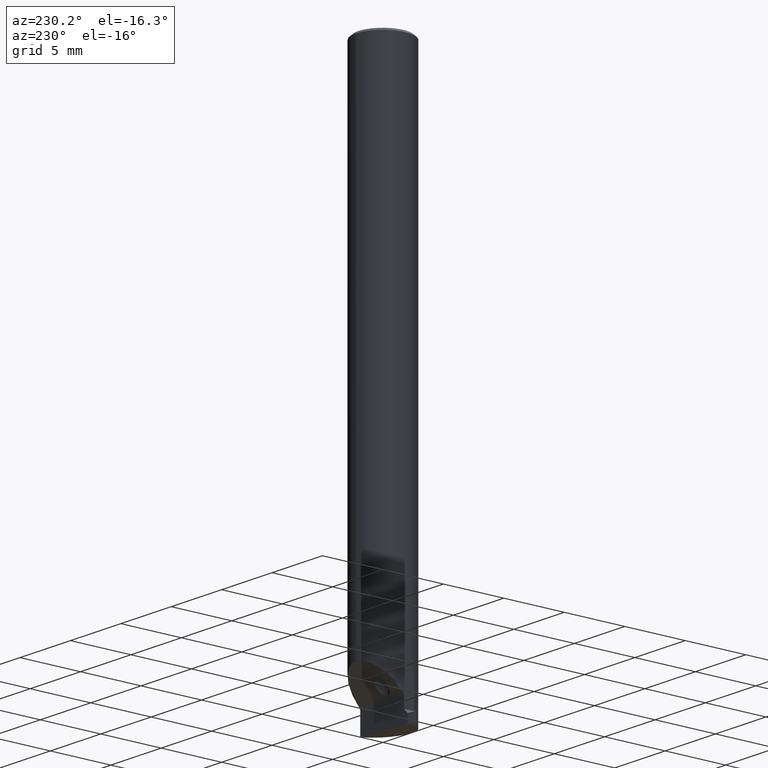
[diagram: clean part render]
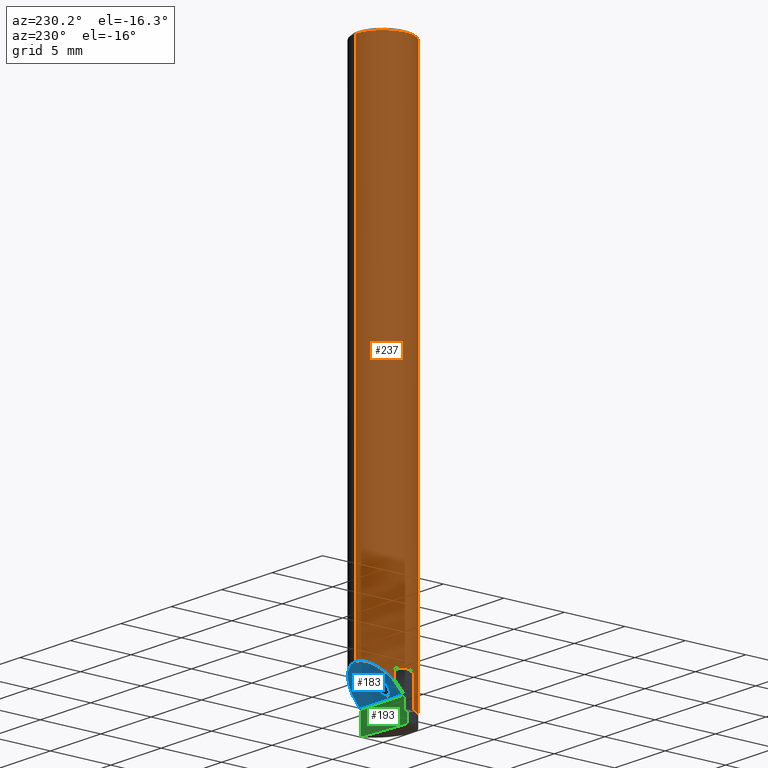
[diagram: same view with three faces highlighted in distinct colors, each labeled with its STEP entity id]
A machine part, auxiliary view with three faces highlighted in distinct colors.
Their STEP definitions:

[orange] entity #237 — the highlighted cylindrical surface (edge-blend (fillet) strip) has radius 2.25 mm, axis along (-0, -0, 1).
#145=EDGE_CURVE('NONE',#211,#241,#366,.T.);
#153=EDGE_CURVE('NONE',#241,#289,#374,.T.);
#155=VERTEX_POINT('NONE',#376);
#157=VERTEX_POINT('NONE',#378);
#161=EDGE_CURVE('NONE',#157,#279,#382,.T.);
#181=VERTEX_POINT('NONE',#404);
#205=VERTEX_POINT('NONE',#433);
#211=VERTEX_POINT('NONE',#439);
#213=EDGE_CURVE('NONE',#181,#205,#441,.T.);
#231=VERTEX_POINT('NONE',#463);
#235=EDGE_CURVE('NONE',#279,#211,#467,.T.);
#237=ADVANCED_FACE('NONE',(#469),#470,.T.);
#241=VERTEX_POINT('NONE',#474);
#245=EDGE_CURVE('NONE',#231,#205,#479,.T.);
#259=EDGE_CURVE('NONE',#289,#309,#493,.T.);
#271=EDGE_CURVE('NONE',#155,#157,#505,.T.);
#277=EDGE_CURVE('NONE',#181,#155,#512,.T.);
#279=VERTEX_POINT('NONE',#514);
#289=VERTEX_POINT('NONE',#525);
#297=EDGE_CURVE('NONE',#309,#231,#535,.T.);
#309=VERTEX_POINT('NONE',#547);
#366=CIRCLE('',#600,2.25);
#374=LINE('',#613,#614);
#376=CARTESIAN_POINT('',(-2.1,0.807774721070173,-43.1922252789298));
#378=CARTESIAN_POINT('',(-2.1,0.807774721070152,-42.45));
#382=(B_SPLINE_CURVE(3,(#625,#626,#627,#628),.UNSPECIFIED.,.F.,.F.)B_SPLINE_CURVE_WITH_KNOTS((4,4),(5.91597728662176,6.65039332773741),.UNSPECIFIED.)RATIONAL_B_SPLINE_CURVE((1.0,0.955555555555558,0.955555555555558,1.0))BOUNDED_CURVE()REPRESENTATION_ITEM('')GEOMETRIC_REPRESENTATION_ITEM()CURVE());
#404=CARTESIAN_POINT('',(2.75545529808154E-016,2.25,-41.75));
#433=CARTESIAN_POINT('',(2.75545529808154E-016,2.25,-0.200000000000001));
#439=CARTESIAN_POINT('',(-2.1,-0.807774721070175,-44.9));
#441=LINE('',#717,#718);
#463=CARTESIAN_POINT('',(0.0,-2.25,-0.200000000000001));
#467=LINE('',#756,#757);
#469=FACE_OUTER_BOUND('',#759,.T.);
#470=CYLINDRICAL_SURFACE('',#760,2.25);
#474=CARTESIAN_POINT('',(-1.7235999970177,-1.44627212179472,-44.9));
#479=CIRCLE('',#770,2.25);
#493=(B_SPLINE_CURVE(3,(#805,#806,#807,#808),.UNSPECIFIED.,.F.,.F.)B_SPLINE_CURVE_WITH_KNOTS((4,4),(5.08992869571552,5.96259332171268),.UNSPECIFIED.)RATIONAL_B_SPLINE_CURVE((1.0,0.9375385246911,0.9375385246911,1.0))BOUNDED_CURVE()REPRESENTATION_ITEM('')GEOMETRIC_REPRESENTATION_ITEM()CURVE());
#505=LINE('',#844,#845);
#512=(B_SPLINE_CURVE(3,(#854,#855,#856,#857),.UNSPECIFIED.,.F.,.F.)B_SPLINE_CURVE_WITH_KNOTS((4,4),(0.0,1.20358830623706),.UNSPECIFIED.)RATIONAL_B_SPLINE_CURVE((1.0,0.882880821351591,0.882880821351591,1.0))BOUNDED_CURVE()REPRESENTATION_ITEM('')GEOMETRIC_REPRESENTATION_ITEM()CURVE());
#514=CARTESIAN_POINT('',(-2.1,-0.807774721070152,-42.45));
#525=CARTESIAN_POINT('',(-1.7235999970177,-1.44627212179472,-45.8260846025512));
#535=LINE('',#891,#892);
#547=CARTESIAN_POINT('',(0.0,-2.25,-45.6813684689799));
#600=AXIS2_PLACEMENT_3D('',#988,#989,#990);
#613=CARTESIAN_POINT('',(-1.7235999970177,-1.44627212179472,-44.0));
#614=VECTOR('',#993,1000.0);
#625=CARTESIAN_POINT('',(-2.1,0.807774721070152,-42.45));
#626=CARTESIAN_POINT('',(-2.30232558139534,0.281781879443077,-42.2476744186047));
#627=CARTESIAN_POINT('',(-2.30232558139534,-0.281781879443076,-42.2476744186047));
#628=CARTESIAN_POINT('',(-2.1,-0.807774721070152,-42.45));
#717=CARTESIAN_POINT('',(2.75545529808154E-016,2.25,0.0));
#718=VECTOR('',#1060,1000.0);
#756=CARTESIAN_POINT('',(-2.10000000000001,-0.807774721070154,-3.64291929955131E-016));
#757=VECTOR('',#1104,1000.0);
#759=EDGE_LOOP('',(#1106,#1107,#1108,#1109,#1110,#1111,#1112,#1113,#1114,#1115));
#760=AXIS2_PLACEMENT_3D('',#1116,#1117,#1118);
#770=AXIS2_PLACEMENT_3D('',#1126,#1127,#1128);
#805=CARTESIAN_POINT('',(-1.7235999970177,-1.44627212179472,-45.8260846025512));
#806=CARTESIAN_POINT('',(-1.28897180555694,-1.96424183041079,-45.7564330574622));
#807=CARTESIAN_POINT('',(-0.676161433280744,-2.25,-45.7049805465307));
#808=CARTESIAN_POINT('',(0.0,-2.25,-45.6813684689799));
#844=CARTESIAN_POINT('',(-2.10000000000001,0.807774721070154,-3.64291929955131E-016));
#845=VECTOR('',#1132,1000.0);
#854=CARTESIAN_POINT('',(2.75545529808154E-016,2.25,-41.75));
#855=CARTESIAN_POINT('',(-0.961832551895664,2.25,-41.75));
#856=CARTESIAN_POINT('',(-1.75469154607834,1.70548510283946,-42.2945148971606));
#857=CARTESIAN_POINT('',(-2.1,0.807774721070173,-43.1922252789298));
#891=CARTESIAN_POINT('',(0.0,-2.25,0.0));
#892=VECTOR('',#1169,1000.0);
#988=CARTESIAN_POINT('',(0.0,0.0,-44.9));
#989=DIRECTION('',(0.0,0.0,1.0));
#990=DIRECTION('',(0.0,-1.0,0.0));
#993=DIRECTION('',(0.0,0.0,-1.0));
#1060=DIRECTION('',(-0.0,0.0,1.0));
#1104=DIRECTION('',(0.0,0.0,-1.0));
#1106=ORIENTED_EDGE('',*,*,#213,.F.);
#1107=ORIENTED_EDGE('',*,*,#277,.T.);
#1108=ORIENTED_EDGE('',*,*,#271,.T.);
#1109=ORIENTED_EDGE('',*,*,#161,.T.);
#1110=ORIENTED_EDGE('',*,*,#235,.T.);
#1111=ORIENTED_EDGE('',*,*,#145,.T.);
#1112=ORIENTED_EDGE('',*,*,#153,.T.);
#1113=ORIENTED_EDGE('',*,*,#259,.T.);
#1114=ORIENTED_EDGE('',*,*,#297,.T.);
#1115=ORIENTED_EDGE('',*,*,#245,.T.);
#1116=CARTESIAN_POINT('',(0.0,0.0,0.0));
#1117=DIRECTION('',(-0.0,-0.0,1.0));
#1118=DIRECTION('',(0.0,-1.0,0.0));
#1126=CARTESIAN_POINT('',(0.0,0.0,-0.200000000000001));
#1127=DIRECTION('',(0.0,0.0,-1.0));
#1128=DIRECTION('',(0.0,1.0,0.0));
#1132=DIRECTION('',(-0.0,0.0,1.0));
#1169=DIRECTION('',(-0.0,0.0,1.0));

[blue] entity #183 — the highlighted planar face has unit normal (0, -0.7071, 0.7071).
#127=VERTEX_POINT('NONE',#345);
#149=VERTEX_POINT('NONE',#370);
#155=VERTEX_POINT('NONE',#376);
#181=VERTEX_POINT('NONE',#404);
#183=ADVANCED_FACE('NONE',(#406,#407),#408,.F.);
#185=EDGE_CURVE('NONE',#253,#155,#410,.T.);
#201=EDGE_CURVE('NONE',#149,#253,#428,.T.);
#239=VERTEX_POINT('NONE',#472);
#253=VERTEX_POINT('NONE',#487);
#265=EDGE_CURVE('NONE',#149,#181,#499,.T.);
#277=EDGE_CURVE('NONE',#181,#155,#512,.T.);
#301=EDGE_CURVE('NONE',#239,#127,#539,.T.);
#303=EDGE_CURVE('NONE',#127,#239,#541,.T.);
#345=CARTESIAN_POINT('',(-0.7,0.2,-43.8));
#370=CARTESIAN_POINT('',(2.24880820606123,0.0732233047033652,-43.9267766952966));
#376=CARTESIAN_POINT('',(-2.1,0.807774721070173,-43.1922252789298));
#404=CARTESIAN_POINT('',(2.75545529808154E-016,2.25,-41.75));
#406=FACE_OUTER_BOUND('',#665,.T.);
#407=FACE_BOUND('',#666,.T.);
#408=PLANE('',#667);
#410=LINE('',#670,#671);
#428=LINE('',#699,#700);
#472=CARTESIAN_POINT('',(-0.7,1.2,-42.8));
#487=CARTESIAN_POINT('',(-2.1,0.0732233047033637,-43.9267766952966));
#499=(B_SPLINE_CURVE(3,(#824,#825,#826,#827),.UNSPECIFIED.,.F.,.F.)B_SPLINE_CURVE_WITH_KNOTS((4,4),(4.74493841856295,6.28318530717959),.UNSPECIFIED.)RATIONAL_B_SPLINE_CURVE((1.0,0.812347063356753,0.812347063356753,1.0))BOUNDED_CURVE()REPRESENTATION_ITEM('')GEOMETRIC_REPRESENTATION_ITEM()CURVE());
#512=(B_SPLINE_CURVE(3,(#854,#855,#856,#857),.UNSPECIFIED.,.F.,.F.)B_SPLINE_CURVE_WITH_KNOTS((4,4),(0.0,1.20358830623706),.UNSPECIFIED.)RATIONAL_B_SPLINE_CURVE((1.0,0.882880821351591,0.882880821351591,1.0))BOUNDED_CURVE()REPRESENTATION_ITEM('')GEOMETRIC_REPRESENTATION_ITEM()CURVE());
#539=(B_SPLINE_CURVE(3,(#898,#899,#900,#901),.UNSPECIFIED.,.F.,.F.)B_SPLINE_CURVE_WITH_KNOTS((4,4),(0.0,3.14159265358979),.UNSPECIFIED.)RATIONAL_B_SPLINE_CURVE((1.0,0.333333333333333,0.333333333333333,1.0))BOUNDED_CURVE()REPRESENTATION_ITEM('')GEOMETRIC_REPRESENTATION_ITEM()CURVE());
#541=(B_SPLINE_CURVE(3,(#911,#912,#913,#914),.UNSPECIFIED.,.F.,.F.)B_SPLINE_CURVE_WITH_KNOTS((4,4),(3.14159265358979,6.28318530717959),.UNSPECIFIED.)RATIONAL_B_SPLINE_CURVE((1.0,0.333333333333333,0.333333333333333,1.0))BOUNDED_CURVE()REPRESENTATION_ITEM('')GEOMETRIC_REPRESENTATION_ITEM()CURVE());
#665=EDGE_LOOP('',(#1011,#1012,#1013,#1014));
#666=EDGE_LOOP('',(#1015,#1016));
#667=AXIS2_PLACEMENT_3D('',#1017,#1018,#1019);
#670=CARTESIAN_POINT('',(-2.1,2.75864944676595,-41.2413505532341));
#671=VECTOR('',#1020,1000.0);
#699=CARTESIAN_POINT('',(-2.25,0.0732233047033652,-43.9267766952966));
#700=VECTOR('',#1049,1000.0);
#824=CARTESIAN_POINT('',(2.24880820606123,0.0732233047033652,-43.9267766952966));
#825=CARTESIAN_POINT('',(2.20701389849969,1.356795279388,-42.643204720612));
#826=CARTESIAN_POINT('',(1.28425222535932,2.25,-41.75));
#827=CARTESIAN_POINT('',(2.75545529808154E-016,2.25,-41.75));
#854=CARTESIAN_POINT('',(2.75545529808154E-016,2.25,-41.75));
#855=CARTESIAN_POINT('',(-0.961832551895664,2.25,-41.75));
#856=CARTESIAN_POINT('',(-1.75469154607834,1.70548510283946,-42.2945148971606));
#857=CARTESIAN_POINT('',(-2.1,0.807774721070173,-43.1922252789298));
#898=CARTESIAN_POINT('',(-0.7,1.2,-42.8));
#899=CARTESIAN_POINT('',(0.3,1.2,-42.8));
#900=CARTESIAN_POINT('',(0.3,0.2,-43.8));
#901=CARTESIAN_POINT('',(-0.7,0.2,-43.8));
#911=CARTESIAN_POINT('',(-0.7,0.2,-43.8));
#912=CARTESIAN_POINT('',(-1.7,0.2,-43.8));
#913=CARTESIAN_POINT('',(-1.7,1.2,-42.8));
#914=CARTESIAN_POINT('',(-0.7,1.2,-42.8));
#1011=ORIENTED_EDGE('',*,*,#201,.T.);
#1012=ORIENTED_EDGE('',*,*,#185,.T.);
#1013=ORIENTED_EDGE('',*,*,#277,.F.);
#1014=ORIENTED_EDGE('',*,*,#265,.F.);
#1015=ORIENTED_EDGE('',*,*,#303,.F.);
#1016=ORIENTED_EDGE('',*,*,#301,.F.);
#1017=CARTESIAN_POINT('',(-27.5591730120752,2.75864944676595,-41.2413505532341));
#1018=DIRECTION('',(0.0,-0.707106781186543,0.707106781186552));
#1019=DIRECTION('',(1.0,0.0,0.0));
#1020=DIRECTION('',(-1.22663473334669E-016,0.707106781186552,0.707106781186543));
#1049=DIRECTION('',(-1.0,0.0,0.0));

[green] entity #193 — the highlighted planar face has unit normal (0, -1, 0).
#137=EDGE_CURVE('NONE',#255,#323,#356,.T.);
#163=VERTEX_POINT('NONE',#384);
#165=VERTEX_POINT('NONE',#386);
#169=VERTEX_POINT('NONE',#390);
#179=EDGE_CURVE('NONE',#165,#321,#402,.T.);
#191=EDGE_CURVE('NONE',#269,#305,#416,.T.);
#193=ADVANCED_FACE('NONE',(#418),#419,.F.);
#209=EDGE_CURVE('NONE',#305,#323,#437,.T.);
#255=VERTEX_POINT('NONE',#489);
#269=VERTEX_POINT('NONE',#503);
#305=VERTEX_POINT('NONE',#543);
#307=EDGE_CURVE('NONE',#163,#255,#545,.T.);
#317=EDGE_CURVE('NONE',#165,#163,#556,.T.);
#319=EDGE_CURVE('NONE',#169,#269,#558,.T.);
#321=VERTEX_POINT('NONE',#560);
#323=VERTEX_POINT('NONE',#562);
#325=EDGE_CURVE('NONE',#321,#169,#564,.T.);
#356=LINE('',#588,#589);
#384=CARTESIAN_POINT('',(-2.34825449350712,0.0,-46.0));
#386=CARTESIAN_POINT('',(-2.35741138789529,0.0,-46.0));
#390=CARTESIAN_POINT('',(-2.43699546910177,0.0,-45.2869954691018));
#402=LINE('',#660,#661);
#416=LINE('',#683,#684);
#418=FACE_OUTER_BOUND('',#686,.T.);
#419=PLANE('',#687);
#437=LINE('',#711,#712);
#489=CARTESIAN_POINT('',(2.25,0.0,-45.8394254147678));
#503=CARTESIAN_POINT('',(-2.1,0.0,-44.95));
#543=CARTESIAN_POINT('',(-2.1,-2.16840434497101E-016,-44.1035533905933));
#545=LINE('',#925,#926);
#556=LINE('',#940,#941);
#558=LINE('',#944,#945);
#560=CARTESIAN_POINT('',(-2.46001259250032,0.0,-45.9063695929868));
#562=CARTESIAN_POINT('',(2.25,0.0,-44.1035533905933));
#564=LINE('',#952,#953);
#588=CARTESIAN_POINT('',(2.25,0.0,0.0));
#589=VECTOR('',#969,1000.0);
#660=CARTESIAN_POINT('',(-2.46153824606796,0.0,-45.904977332876));
#661=VECTOR('',#1009,1000.0);
#683=CARTESIAN_POINT('',(-2.1,0.0,-44.0));
#684=VECTOR('',#1024,1000.0);
#686=EDGE_LOOP('',(#1026,#1027,#1028,#1029,#1030,#1031,#1032,#1033));
#687=AXIS2_PLACEMENT_3D('',#1034,#1035,#1036);
#711=CARTESIAN_POINT('',(2.25,0.0,-44.1035533905933));
#712=VECTOR('',#1059,1000.0);
#925=CARTESIAN_POINT('',(3.14999999999999,0.0,-45.8079967222253));
#926=VECTOR('',#1170,1000.0);
#940=CARTESIAN_POINT('',(2.46349207694917,0.0,-46.0));
#941=VECTOR('',#1181,1000.0);
#944=CARTESIAN_POINT('',(-2.84508015567868,0.0,-45.6950801556787));
#945=VECTOR('',#1182,1000.0);
#952=CARTESIAN_POINT('',(-2.39213470263279,0.0,-44.079824727241));
#953=VECTOR('',#1183,1000.0);
#969=DIRECTION('',(-0.0,0.0,1.0));
#1009=DIRECTION('',(-0.738660959460366,0.0,0.674077137254403));
#1024=DIRECTION('',(-1.73472347597681E-016,-0.0,1.0));
#1026=ORIENTED_EDGE('',*,*,#317,.F.);
#1027=ORIENTED_EDGE('',*,*,#179,.T.);
#1028=ORIENTED_EDGE('',*,*,#325,.T.);
#1029=ORIENTED_EDGE('',*,*,#319,.T.);
#1030=ORIENTED_EDGE('',*,*,#191,.T.);
#1031=ORIENTED_EDGE('',*,*,#209,.T.);
#1032=ORIENTED_EDGE('',*,*,#137,.F.);
#1033=ORIENTED_EDGE('',*,*,#307,.F.);
#1034=CARTESIAN_POINT('',(-4.54016031135738,0.0,-44.0));
#1035=DIRECTION('',(0.0,-1.0,0.0));
#1036=DIRECTION('',(0.0,0.0,-1.0));
#1059=DIRECTION('',(1.0,0.0,0.0));
#1170=DIRECTION('',(0.999390827019096,0.0,0.0348994967025011));
#1181=DIRECTION('',(1.0,0.0,0.0));
#1182=DIRECTION('',(0.707106781186544,0.0,0.707106781186551));
#1183=DIRECTION('',(0.03713627280588,0.0,0.999310210716416));